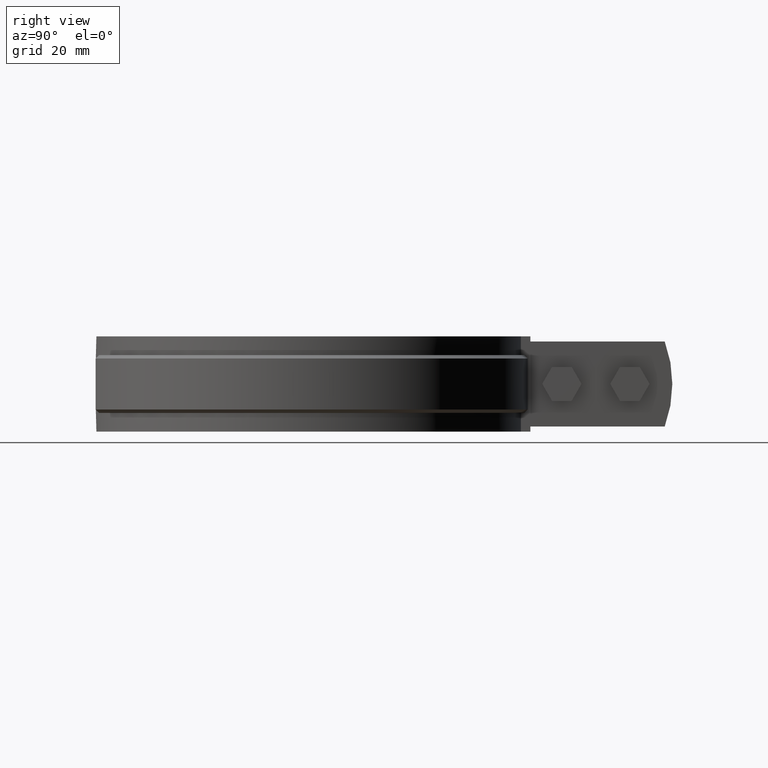
[diagram: clean part render]
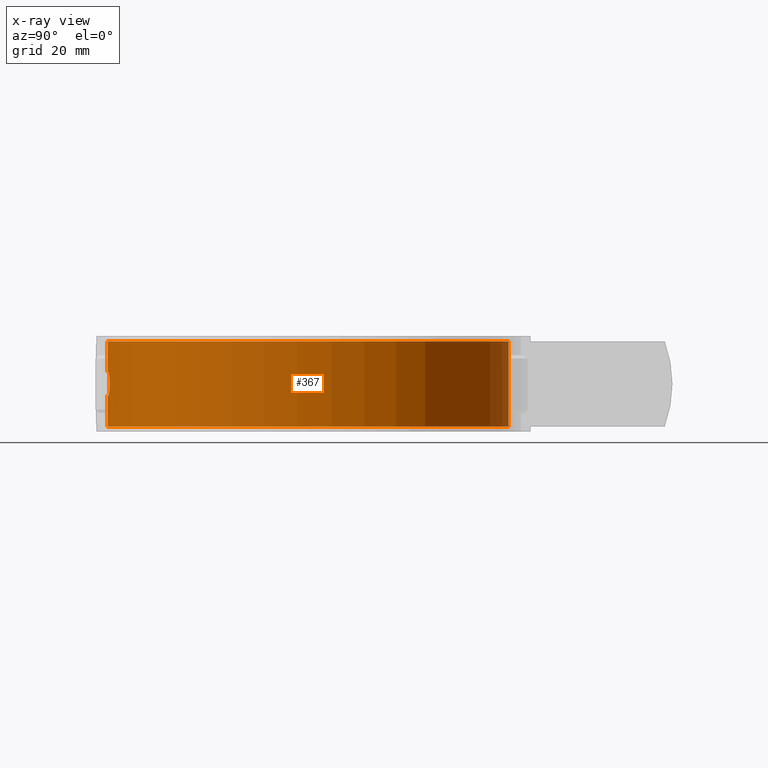
[diagram: x-ray — body ghosted, one internal face saturated and labeled with its STEP entity id]
A machine part, right view, then the same camera in x-ray: the body is ghosted and one INTERNAL B-rep face — a face not visible from any outside direction — is saturated and labeled: STEP entity #367.
In plain terms, the highlighted cylindrical surface (partial cylindrical patch) has radius 59.15 mm, axis along (0, 0, -1).
Its self-contained STEP definition (entity closure, byte-faithful):
#367 = ADVANCED_FACE( '', ( #622, #623 ), #624, .T. );
#622 = FACE_OUTER_BOUND( '', #1308, .T. );
#623 = FACE_BOUND( '', #1309, .T. );
#624 = CYLINDRICAL_SURFACE( '', #1310, 59.1500000000000 );
#1308 = EDGE_LOOP( '', ( #2746, #2747, #2748, #2749 ) );
#1309 = EDGE_LOOP( '', ( #2750, #2751, #2752, #2753, #2754, #2755, #2756, #2757, #2758, #2759, #2760, #2761, #2762, #2763, #2764, #2765 ) );
#1310 = AXIS2_PLACEMENT_3D( '', #2766, #2767, #2768 );
#2746 = ORIENTED_EDGE( '', *, *, #3980, .F. );
#2747 = ORIENTED_EDGE( '', *, *, #3992, .T. );
#2748 = ORIENTED_EDGE( '', *, *, #3993, .T. );
#2749 = ORIENTED_EDGE( '', *, *, #3986, .F. );
#2750 = ORIENTED_EDGE( '', *, *, #3994, .F. );
#2751 = ORIENTED_EDGE( '', *, *, #3995, .F. );
#2752 = ORIENTED_EDGE( '', *, *, #3996, .F. );
#2753 = ORIENTED_EDGE( '', *, *, #3997, .F. );
#2754 = ORIENTED_EDGE( '', *, *, #3998, .F. );
#2755 = ORIENTED_EDGE( '', *, *, #3999, .F. );
#2756 = ORIENTED_EDGE( '', *, *, #4000, .F. );
#2757 = ORIENTED_EDGE( '', *, *, #4001, .F. );
#2758 = ORIENTED_EDGE( '', *, *, #4002, .F. );
#2759 = ORIENTED_EDGE( '', *, *, #4003, .F. );
#2760 = ORIENTED_EDGE( '', *, *, #4004, .F. );
#2761 = ORIENTED_EDGE( '', *, *, #4005, .F. );
#2762 = ORIENTED_EDGE( '', *, *, #4006, .F. );
#2763 = ORIENTED_EDGE( '', *, *, #4007, .F. );
#2764 = ORIENTED_EDGE( '', *, *, #4008, .F. );
#2765 = ORIENTED_EDGE( '', *, *, #4009, .F. );
#2766 = CARTESIAN_POINT( '', ( 0.000000000000000, 0.000000000000000, -14.0000000000000 ) );
#2767 = DIRECTION( '', ( 0.000000000000000, 0.000000000000000, -1.00000000000000 ) );
#2768 = DIRECTION( '', ( -0.0845308537616220, -0.996420862267712, 0.000000000000000 ) );
#3980 = EDGE_CURVE( '', #4563, #4565, #4566, .T. );
#3986 = EDGE_CURVE( '', #4565, #4576, #4577, .T. );
#3992 = EDGE_CURVE( '', #4563, #4586, #4587, .T. );
#3993 = EDGE_CURVE( '', #4586, #4576, #4588, .T. );
#3994 = EDGE_CURVE( '', #4589, #4590, #4591, .T. );
#3995 = EDGE_CURVE( '', #4592, #4589, #4593, .F. );
#3996 = EDGE_CURVE( '', #4594, #4592, #4595, .T. );
#3997 = EDGE_CURVE( '', #4596, #4594, #4597, .F. );
#3998 = EDGE_CURVE( '', #4598, #4596, #4599, .T. );
#3999 = EDGE_CURVE( '', #4600, #4598, #4601, .F. );
#4000 = EDGE_CURVE( '', #4602, #4600, #4603, .T. );
#4001 = EDGE_CURVE( '', #4604, #4602, #4605, .F. );
#4002 = EDGE_CURVE( '', #4606, #4604, #4607, .T. );
#4003 = EDGE_CURVE( '', #4608, #4606, #4609, .F. );
#4004 = EDGE_CURVE( '', #4610, #4608, #4611, .T. );
#4005 = EDGE_CURVE( '', #4612, #4610, #4613, .F. );
#4006 = EDGE_CURVE( '', #4614, #4612, #4615, .T. );
#4007 = EDGE_CURVE( '', #4616, #4614, #4617, .F. );
#4008 = EDGE_CURVE( '', #4618, #4616, #4619, .T. );
#4009 = EDGE_CURVE( '', #4590, #4618, #4620, .F. );
#4563 = VERTEX_POINT( '', #6536 );
#4565 = VERTEX_POINT( '', #6538 );
#4566 = LINE( '', #6539, #6540 );
#4576 = VERTEX_POINT( '', #6568 );
#4577 = CIRCLE( '', #6569, 59.1500000000000 );
#4586 = VERTEX_POINT( '', #6581 );
#4587 = CIRCLE( '', #6582, 59.1500000000000 );
#4588 = LINE( '', #6583, #6584 );
#4589 = VERTEX_POINT( '', #6585 );
#4590 = VERTEX_POINT( '', #6586 );
#4591 = B_SPLINE_CURVE_WITH_KNOTS( '', 3, ( #6587, #6588, #6589, #6590, #6591, #6592, #6593, #6594, #6595, #6596, #6597, #6598, #6599, #6600, #6601, #6602, #6603, #6604, #6605, #6606, #6607, #6608, #6609, #6610, #6611, #6612, #6613, #6614, #6615, #6616, #6617, #6618, #6619, #6620 ), .UNSPECIFIED., .F., .F., ( 4, 2, 2, 2, 2, 2, 2, 2, 2, 2, 2, 2, 2, 2, 2, 2, 4 ), ( 9.69739903612216E-018, 0.000685840484445844, 0.00137168096889168, 0.00205752145333751, 0.00274336193778335, 0.00342920242222918, 0.00411504290667501, 0.00480088339112085, 0.00548672387556668, 0.00617256436001252, 0.00685840484445836, 0.00754424532890419, 0.00823008581335003, 0.00891592629779586, 0.00960176678224170, 0.0102876072666875, 0.0109734477511334 ), .UNSPECIFIED. );
#4592 = VERTEX_POINT( '', #6621 );
#4593 = CIRCLE( '', #6622, 59.1500000000000 );
#4594 = VERTEX_POINT( '', #6623 );
#4595 = B_SPLINE_CURVE_WITH_KNOTS( '', 3, ( #6624, #6625, #6626, #6627, #6628, #6629 ), .UNSPECIFIED., .F., .F., ( 4, 2, 4 ), ( 0.000000000000000, 0.000335831481587550, 0.000671662963175100 ), .UNSPECIFIED. );
#4596 = VERTEX_POINT( '', #6630 );
#4597 = ELLIPSE( '', #6631, 269.461386027856, 59.1500000000000 );
#4598 = VERTEX_POINT( '', #6632 );
#4599 = B_SPLINE_CURVE_WITH_KNOTS( '', 3, ( #6633, #6634, #6635, #6636, #6637, #6638, #6639, #6640, #6641, #6642 ), .UNSPECIFIED., .F., .F., ( 4, 2, 2, 2, 4 ), ( 0.000000000000000, 0.000671559393518246, 0.00134311878703649, 0.00201467818055474, 0.00268623757407299 ), .UNSPECIFIED. );
#4600 = VERTEX_POINT( '', #6643 );
#4601 = ELLIPSE( '', #6644, 269.461248569451, 59.1500000000000 );
#4602 = VERTEX_POINT( '', #6645 );
#4603 = B_SPLINE_CURVE_WITH_KNOTS( '', 3, ( #6646, #6647, #6648, #6649, #6650, #6651 ), .UNSPECIFIED., .F., .F., ( 4, 2, 4 ), ( 0.000000000000000, 0.000335830453991692, 0.000671660907983384 ), .UNSPECIFIED. );
#4604 = VERTEX_POINT( '', #6652 );
#4605 = CIRCLE( '', #6653, 59.1500000000000 );
#4606 = VERTEX_POINT( '', #6654 );
#4607 = B_SPLINE_CURVE_WITH_KNOTS( '', 3, ( #6655, #6656, #6657, #6658, #6659, #6660, #6661, #6662, #6663, #6664, #6665, #6666, #6667, #6668, #6669, #6670, #6671, #6672, #6673, #6674, #6675, #6676, #6677, #6678, #6679, #6680, #6681, #6682, #6683, #6684, #6685, #6686, #6687, #6688 ), .UNSPECIFIED., .F., .F., ( 4, 2, 2, 2, 2, 2, 2, 2, 2, 2, 2, 2, 2, 2, 2, 2, 4 ), ( 0.000000000000000, 0.000685840484445824, 0.00137168096889165, 0.00205752145333747, 0.00274336193778330, 0.00342920242222912, 0.00411504290667495, 0.00480088339112077, 0.00548672387556660, 0.00617256436001242, 0.00685840484445824, 0.00754424532890407, 0.00823008581334989, 0.00891592629779571, 0.00960176678224154, 0.0102876072666874, 0.0109734477511332 ), .UNSPECIFIED. );
#4608 = VERTEX_POINT( '', #6689 );
#4609 = CIRCLE( '', #6690, 59.1500000000000 );
#4610 = VERTEX_POINT( '', #6691 );
#4611 = B_SPLINE_CURVE_WITH_KNOTS( '', 3, ( #6692, #6693, #6694, #6695, #6696, #6697 ), .UNSPECIFIED., .F., .F., ( 4, 2, 4 ), ( 0.000000000000000, 0.000335831481587561, 0.000671662963175122 ), .UNSPECIFIED. );
#4612 = VERTEX_POINT( '', #6698 );
#4613 = ELLIPSE( '', #6699, 269.461386027932, 59.1500000000000 );
#4614 = VERTEX_POINT( '', #6700 );
#4615 = B_SPLINE_CURVE_WITH_KNOTS( '', 3, ( #6701, #6702, #6703, #6704, #6705, #6706, #6707, #6708, #6709, #6710 ), .UNSPECIFIED., .F., .F., ( 4, 2, 2, 2, 4 ), ( 0.000000000000000, 0.000671559393518249, 0.00134311878703650, 0.00201467818055475, 0.00268623757407300 ), .UNSPECIFIED. );
#4616 = VERTEX_POINT( '', #6711 );
#4617 = ELLIPSE( '', #6712, 269.461248569451, 59.1500000000000 );
#4618 = VERTEX_POINT( '', #6713 );
#4619 = B_SPLINE_CURVE_WITH_KNOTS( '', 3, ( #6714, #6715, #6716, #6717, #6718, #6719 ), .UNSPECIFIED., .F., .F., ( 4, 2, 4 ), ( 0.000000000000000, 0.000335830453991760, 0.000671660907983519 ), .UNSPECIFIED. );
#4620 = CIRCLE( '', #6720, 59.1500000000000 );
#6536 = CARTESIAN_POINT( '', ( -6.66210780370072, 58.7736235024851, -12.5000000000000 ) );
#6538 = CARTESIAN_POINT( '', ( -6.66210780370077, 58.7736235024851, 12.5000000000000 ) );
#6539 = CARTESIAN_POINT( '', ( -6.66210780370072, 58.7736235024851, -14.0000000000000 ) );
#6540 = VECTOR( '', #8194, 1000.00000000000 );
#6568 = CARTESIAN_POINT( '', ( 6.66210780370074, 58.7736235024851, 12.5000000000000 ) );
#6569 = AXIS2_PLACEMENT_3D( '', #8201, #8202, #8203 );
#6581 = CARTESIAN_POINT( '', ( 6.66210780370075, 58.7736235024851, -12.5000000000000 ) );
#6582 = AXIS2_PLACEMENT_3D( '', #8213, #8214, #8215 );
#6583 = CARTESIAN_POINT( '', ( 6.66210780370075, 58.7736235024851, -14.0000000000000 ) );
#6584 = VECTOR( '', #8216, 1000.00000000000 );
#6585 = CARTESIAN_POINT( '', ( 5.00000000000003, -58.9382940031352, -3.49999999999999 ) );
#6586 = CARTESIAN_POINT( '', ( 4.99999999999998, -58.9382940031352, 3.49999999999999 ) );
#6587 = CARTESIAN_POINT( '', ( 5.00000000000003, -58.9382940031352, -3.50000000000004 ) );
#6588 = CARTESIAN_POINT( '', ( 5.23108472953870, -58.9186900484019, -3.50000000000005 ) );
#6589 = CARTESIAN_POINT( '', ( 5.45819630642193, -58.8980553882998, -3.47733987116120 ) );
#6590 = CARTESIAN_POINT( '', ( 5.90483281279597, -58.8549554829124, -3.38867437439389 ) );
#6591 = CARTESIAN_POINT( '', ( 6.12663036380665, -58.8322377638681, -3.32161878510515 ) );
#6592 = CARTESIAN_POINT( '', ( 6.54985499710422, -58.7866243242112, -3.14648960242452 ) );
#6593 = CARTESIAN_POINT( '', ( 6.75056696535412, -58.7638403280690, -3.03934362483283 ) );
#6594 = CARTESIAN_POINT( '', ( 7.13046567819296, -58.7189538706935, -2.78625382261612 ) );
#6595 = CARTESIAN_POINT( '', ( 7.31051535566461, -58.6967236501176, -2.63885514677865 ) );
#6596 = CARTESIAN_POINT( '', ( 7.63349595950092, -58.6555942895473, -2.31662183485662 ) );
#6597 = CARTESIAN_POINT( '', ( 7.77849157376942, -58.6364586331887, -2.14076483153373 ) );
#6598 = CARTESIAN_POINT( '', ( 8.03472267801004, -58.6018979529871, -1.75879156155892 ) );
#6599 = CARTESIAN_POINT( '', ( 8.14403067117517, -58.5867314208868, -1.55472622131932 ) );
#6600 = CARTESIAN_POINT( '', ( 8.31932961901536, -58.5620960079670, -1.13320490860008 ) );
#6601 = CARTESIAN_POINT( '', ( 8.38677917544447, -58.5524254931442, -0.912778948258094 ) );
#6602 = CARTESIAN_POINT( '', ( 8.47740967954881, -58.5393724017687, -0.459413225960784 ) );
#6603 = CARTESIAN_POINT( '', ( 8.49981926058052, -58.5361048633271, -0.231619601638268 ) );
#6604 = CARTESIAN_POINT( '', ( 8.50017858271889, -58.5360526863133, 0.226124712646311 ) );
#6605 = CARTESIAN_POINT( '', ( 8.47740917893714, -58.5393721009278, 0.458600165287515 ) );
#6606 = CARTESIAN_POINT( '', ( 8.38772872888854, -58.5522891023792, 0.908835941642526 ) );
#6607 = CARTESIAN_POINT( '', ( 8.32137719446028, -58.5618054638645, 1.12746850434298 ) );
#6608 = CARTESIAN_POINT( '', ( 8.14559362537555, -58.5865145070966, 1.55176429916493 ) );
#6609 = CARTESIAN_POINT( '', ( 8.03571203668990, -58.6017595818350, 1.75684685243296 ) );
#6610 = CARTESIAN_POINT( '', ( 7.78193311994009, -58.6359992746825, 2.13609610008257 ) );
#6611 = CARTESIAN_POINT( '', ( 7.63715711120223, -58.6551228864835, 2.31272799926857 ) );
#6612 = CARTESIAN_POINT( '', ( 7.31049668957843, -58.6967311502210, 2.63911225134749 ) );
#6613 = CARTESIAN_POINT( '', ( 7.13372425938852, -58.7185558813006, 2.78370983069290 ) );
#6614 = CARTESIAN_POINT( '', ( 6.75516974813841, -58.7633092011354, 3.03664268425166 ) );
#6615 = CARTESIAN_POINT( '', ( 6.55091862757238, -58.7865057023843, 3.14596549535335 ) );
#6616 = CARTESIAN_POINT( '', ( 6.12775257217611, -58.8321207842767, 3.32123796546634 ) );
#6617 = CARTESIAN_POINT( '', ( 5.91000018107457, -58.8544389990636, 3.38733337480229 ) );
#6618 = CARTESIAN_POINT( '', ( 5.46223010274415, -58.8976836075875, 3.47684786174522 ) );
#6619 = CARTESIAN_POINT( '', ( 5.23108267661422, -58.9186902225607, 3.49999999999999 ) );
#6620 = CARTESIAN_POINT( '', ( 4.99999999999998, -58.9382940031352, 3.49999999999999 ) );
#6621 = CARTESIAN_POINT( '', ( 1.65000000000005, -59.1269819963779, -3.49999999999999 ) );
#6622 = AXIS2_PLACEMENT_3D( '', #8217, #8218, #8219 );
#6623 = CARTESIAN_POINT( '', ( 1.16219512100915, -59.1385813365581, -3.89024390662630 ) );
#6624 = CARTESIAN_POINT( '', ( 1.16219512100915, -59.1385813365581, -3.89024390662630 ) );
#6625 = CARTESIAN_POINT( '', ( 1.18712176025611, -59.1380914766755, -3.77945883886600 ) );
#6626 = CARTESIAN_POINT( '', ( 1.24902115300256, -59.1368777571282, -3.68045980007246 ) );
#6627 = CARTESIAN_POINT( '', ( 1.42634210307314, -59.1328666048516, -3.53862475115000 ) );
#6628 = CARTESIAN_POINT( '', ( 1.53648944153045, -59.1301496267076, -3.50000000000003 ) );
#6629 = CARTESIAN_POINT( '', ( 1.65000000000005, -59.1269819963779, -3.50000000000003 ) );
#6630 = CARTESIAN_POINT( '', ( 0.975609999999987, -59.1419536803435, -4.71951200000003 ) );
#6631 = AXIS2_PLACEMENT_3D( '', #8220, #8221, #8222 );
#6632 = CARTESIAN_POINT( '', ( -0.975609757981832, -59.1419536843359, -4.71951218674745 ) );
#6633 = CARTESIAN_POINT( '', ( -0.975609757981832, -59.1419536843359, -4.71951218674745 ) );
#6634 = CARTESIAN_POINT( '', ( -0.925764000266897, -59.1427759434023, -4.94104879757686 ) );
#6635 = CARTESIAN_POINT( '', ( -0.802006839384732, -59.1448284066473, -5.13901853152155 ) );
#6636 = CARTESIAN_POINT( '', ( -0.447387521711694, -59.1485738342658, -5.42271559104646 ) );
#6637 = CARTESIAN_POINT( '', ( -0.227075775181514, -59.1500000017834, -5.50000008621365 ) );
#6638 = CARTESIAN_POINT( '', ( 0.227076704276916, -59.1499999982166, -5.49999992065342 ) );
#6639 = CARTESIAN_POINT( '', ( 0.447393780783083, -59.1485737775223, -5.42271183234166 ) );
#6640 = CARTESIAN_POINT( '', ( 0.802006826849411, -59.1448283974158, -5.13901761295265 ) );
#6641 = CARTESIAN_POINT( '', ( 0.925764284607063, -59.1427759389158, -4.94104862074254 ) );
#6642 = CARTESIAN_POINT( '', ( 0.975609999999987, -59.1419536803435, -4.71951200000003 ) );
#6643 = CARTESIAN_POINT( '', ( -1.16219500000001, -59.1385813389362, -3.89024400000000 ) );
#6644 = AXIS2_PLACEMENT_3D( '', #8223, #8224, #8225 );
#6645 = CARTESIAN_POINT( '', ( -1.64999999999996, -59.1269819963779, -3.50000000000002 ) );
#6646 = CARTESIAN_POINT( '', ( -1.64999999999996, -59.1269819963779, -3.50000000000002 ) );
#6647 = CARTESIAN_POINT( '', ( -1.53648941365402, -59.1301496274855, -3.49999999951284 ) );
#6648 = CARTESIAN_POINT( '', ( -1.42634195765584, -59.1328666075620, -3.53862500442069 ) );
#6649 = CARTESIAN_POINT( '', ( -1.24902207049613, -59.1368777369528, -3.68045885717108 ) );
#6650 = CARTESIAN_POINT( '', ( -1.18712164587725, -59.1380914789743, -3.77945890499200 ) );
#6651 = CARTESIAN_POINT( '', ( -1.16219500000001, -59.1385813389362, -3.89024400000000 ) );
#6652 = CARTESIAN_POINT( '', ( -4.99999999999992, -58.9382940031352, -3.49999999999999 ) );
#6653 = AXIS2_PLACEMENT_3D( '', #8226, #8227, #8228 );
#6654 = CARTESIAN_POINT( '', ( -4.99999999999992, -58.9382940031352, 3.49999999999996 ) );
#6655 = CARTESIAN_POINT( '', ( -4.99999999999992, -58.9382940031352, 3.49999999999996 ) );
#6656 = CARTESIAN_POINT( '', ( -5.23108472953859, -58.9186900484019, 3.49999999999996 ) );
#6657 = CARTESIAN_POINT( '', ( -5.45819630642181, -58.8980553882998, 3.47733987116112 ) );
#6658 = CARTESIAN_POINT( '', ( -5.90483281279584, -58.8549554829124, 3.38867437439382 ) );
#6659 = CARTESIAN_POINT( '', ( -6.12663036380651, -58.8322377638681, 3.32161878510507 ) );
#6660 = CARTESIAN_POINT( '', ( -6.54985499710408, -58.7866243242112, 3.14648960242444 ) );
#6661 = CARTESIAN_POINT( '', ( -6.75056696535398, -58.7638403280690, 3.03934362483276 ) );
#6662 = CARTESIAN_POINT( '', ( -7.13046567819280, -58.7189538706935, 2.78625382261606 ) );
#6663 = CARTESIAN_POINT( '', ( -7.31051535566445, -58.6967236501177, 2.63885514677858 ) );
#6664 = CARTESIAN_POINT( '', ( -7.63349595950076, -58.6555942895473, 2.31662183485656 ) );
#6665 = CARTESIAN_POINT( '', ( -7.77849157376927, -58.6364586331887, 2.14076483153368 ) );
#6666 = CARTESIAN_POINT( '', ( -8.03472267800989, -58.6018979529872, 1.75879156155888 ) );
#6667 = CARTESIAN_POINT( '', ( -8.14403067117501, -58.5867314208869, 1.55472622131928 ) );
#6668 = CARTESIAN_POINT( '', ( -8.31932961901520, -58.5620960079670, 1.13320490860005 ) );
#6669 = CARTESIAN_POINT( '', ( -8.38677917544431, -58.5524254931442, 0.912778948258069 ) );
#6670 = CARTESIAN_POINT( '', ( -8.47740967954866, -58.5393724017687, 0.459413225960766 ) );
#6671 = CARTESIAN_POINT( '', ( -8.49981926058036, -58.5361048633271, 0.231619601638253 ) );
#6672 = CARTESIAN_POINT( '', ( -8.50017858271874, -58.5360526863133, -0.226124712646318 ) );
#6673 = CARTESIAN_POINT( '', ( -8.47740917893700, -58.5393721009278, -0.458600165287517 ) );
#6674 = CARTESIAN_POINT( '', ( -8.38772872888840, -58.5522891023792, -0.908835941642524 ) );
#6675 = CARTESIAN_POINT( '', ( -8.32137719446014, -58.5618054638645, -1.12746850434297 ) );
#6676 = CARTESIAN_POINT( '', ( -8.14559362537542, -58.5865145070966, -1.55176429916492 ) );
#6677 = CARTESIAN_POINT( '', ( -8.03571203668978, -58.6017595818350, -1.75684685243295 ) );
#6678 = CARTESIAN_POINT( '', ( -7.78193311993997, -58.6359992746825, -2.13609610008255 ) );
#6679 = CARTESIAN_POINT( '', ( -7.63715711120212, -58.6551228864835, -2.31272799926855 ) );
#6680 = CARTESIAN_POINT( '', ( -7.31049668957832, -58.6967311502211, -2.63911225134747 ) );
#6681 = CARTESIAN_POINT( '', ( -7.13372425938842, -58.7185558813006, -2.78370983069288 ) );
#6682 = CARTESIAN_POINT( '', ( -6.75516974813832, -58.7633092011354, -3.03664268425164 ) );
#6683 = CARTESIAN_POINT( '', ( -6.55091862757229, -58.7865057023843, -3.14596549535333 ) );
#6684 = CARTESIAN_POINT( '', ( -6.12775257217603, -58.8321207842767, -3.32123796546633 ) );
#6685 = CARTESIAN_POINT( '', ( -5.91000018107450, -58.8544389990637, -3.38733337480228 ) );
#6686 = CARTESIAN_POINT( '', ( -5.46223010274409, -58.8976836075875, -3.47684786174521 ) );
#6687 = CARTESIAN_POINT( '', ( -5.23108267661416, -58.9186902225607, -3.49999999999999 ) );
#6688 = CARTESIAN_POINT( '', ( -4.99999999999992, -58.9382940031352, -3.49999999999999 ) );
#6689 = CARTESIAN_POINT( '', ( -1.65000000000001, -59.1269819963779, 3.49999999999999 ) );
#6690 = AXIS2_PLACEMENT_3D( '', #8229, #8230, #8231 );
#6691 = CARTESIAN_POINT( '', ( -1.16219512100910, -59.1385813365581, 3.89024390662628 ) );
#6692 = CARTESIAN_POINT( '', ( -1.16219512100910, -59.1385813365581, 3.89024390662628 ) );
#6693 = CARTESIAN_POINT( '', ( -1.18712176025606, -59.1380914766755, 3.77945883886597 ) );
#6694 = CARTESIAN_POINT( '', ( -1.24902115300251, -59.1368777571282, 3.68045980007243 ) );
#6695 = CARTESIAN_POINT( '', ( -1.42634210307309, -59.1328666048516, 3.53862475114997 ) );
#6696 = CARTESIAN_POINT( '', ( -1.53648944153041, -59.1301496267076, 3.49999999999999 ) );
#6697 = CARTESIAN_POINT( '', ( -1.65000000000001, -59.1269819963779, 3.49999999999999 ) );
#6698 = CARTESIAN_POINT( '', ( -0.975609999999988, -59.1419536803435, 4.71951200000001 ) );
#6699 = AXIS2_PLACEMENT_3D( '', #8232, #8233, #8234 );
#6700 = CARTESIAN_POINT( '', ( 0.975609757981834, -59.1419536843359, 4.71951218674745 ) );
#6701 = CARTESIAN_POINT( '', ( 0.975609757981834, -59.1419536843359, 4.71951218674745 ) );
#6702 = CARTESIAN_POINT( '', ( 0.925764000266897, -59.1427759434023, 4.94104879757687 ) );
#6703 = CARTESIAN_POINT( '', ( 0.802006839384731, -59.1448284066473, 5.13901853152156 ) );
#6704 = CARTESIAN_POINT( '', ( 0.447387521711689, -59.1485738342658, 5.42271559104646 ) );
#6705 = CARTESIAN_POINT( '', ( 0.227075775181507, -59.1500000017834, 5.50000008621365 ) );
#6706 = CARTESIAN_POINT( '', ( -0.227076704276925, -59.1499999982166, 5.49999992065342 ) );
#6707 = CARTESIAN_POINT( '', ( -0.447393780783092, -59.1485737775223, 5.42271183234166 ) );
#6708 = CARTESIAN_POINT( '', ( -0.802006826849418, -59.1448283974158, 5.13901761295264 ) );
#6709 = CARTESIAN_POINT( '', ( -0.925764284607068, -59.1427759389158, 4.94104862074253 ) );
#6710 = CARTESIAN_POINT( '', ( -0.975609999999988, -59.1419536803435, 4.71951200000001 ) );
#6711 = CARTESIAN_POINT( '', ( 1.16219500000000, -59.1385813389362, 3.89024400000001 ) );
#6712 = AXIS2_PLACEMENT_3D( '', #8235, #8236, #8237 );
#6713 = CARTESIAN_POINT( '', ( 1.65000000000007, -59.1269819963779, 3.49999999999997 ) );
#6714 = CARTESIAN_POINT( '', ( 1.65000000000007, -59.1269819963779, 3.49999999999997 ) );
#6715 = CARTESIAN_POINT( '', ( 1.53648941365411, -59.1301496274855, 3.49999999951279 ) );
#6716 = CARTESIAN_POINT( '', ( 1.42634195765590, -59.1328666075620, 3.53862500442063 ) );
#6717 = CARTESIAN_POINT( '', ( 1.24902207049616, -59.1368777369528, 3.68045885717104 ) );
#6718 = CARTESIAN_POINT( '', ( 1.18712164587726, -59.1380914789743, 3.77945890499198 ) );
#6719 = CARTESIAN_POINT( '', ( 1.16219500000000, -59.1385813389362, 3.89024400000001 ) );
#6720 = AXIS2_PLACEMENT_3D( '', #8238, #8239, #8240 );
#8194 = DIRECTION( '', ( 0.000000000000000, 0.000000000000000, 1.00000000000000 ) );
#8201 = CARTESIAN_POINT( '', ( 0.000000000000000, 6.93889390390723E-015, 12.5000000000000 ) );
#8202 = DIRECTION( '', ( 0.000000000000000, 0.000000000000000, 1.00000000000000 ) );
#8203 = DIRECTION( '', ( 1.00000000000000, 1.38777878078145E-017, 0.000000000000000 ) );
#8213 = CARTESIAN_POINT( '', ( 0.000000000000000, 6.93889390390723E-015, -12.5000000000000 ) );
#8214 = DIRECTION( '', ( 0.000000000000000, 0.000000000000000, 1.00000000000000 ) );
#8215 = DIRECTION( '', ( 1.00000000000000, 1.38777878078145E-017, 0.000000000000000 ) );
#8216 = DIRECTION( '', ( 0.000000000000000, 0.000000000000000, 1.00000000000000 ) );
#8217 = CARTESIAN_POINT( '', ( 0.000000000000000, 0.000000000000000, -3.49999999999999 ) );
#8218 = DIRECTION( '', ( -6.12303176911189E-017, 0.000000000000000, -1.00000000000000 ) );
#8219 = DIRECTION( '', ( -1.00000000000000, 0.000000000000000, 6.12303176911189E-017 ) );
#8220 = CARTESIAN_POINT( '', ( 0.000000000000000, 0.000000000000000, -9.05556109223489 ) );
#8221 = DIRECTION( '', ( 0.975609806487704, 0.000000000000000, -0.219511971165639 ) );
#8222 = DIRECTION( '', ( 0.219511971165639, 0.000000000000000, 0.975609806487704 ) );
#8223 = CARTESIAN_POINT( '', ( 0.000000000000000, 0.000000000000000, -9.05555787944973 ) );
#8224 = DIRECTION( '', ( -0.975609781292646, 0.000000000000000, -0.219512083143765 ) );
#8225 = DIRECTION( '', ( -0.219512083143765, 0.000000000000000, 0.975609781292646 ) );
#8226 = CARTESIAN_POINT( '', ( 0.000000000000000, 0.000000000000000, -3.49999999999999 ) );
#8227 = DIRECTION( '', ( -6.12303176911189E-017, 0.000000000000000, -1.00000000000000 ) );
#8228 = DIRECTION( '', ( -1.00000000000000, 0.000000000000000, 6.12303176911189E-017 ) );
#8229 = CARTESIAN_POINT( '', ( 0.000000000000000, 0.000000000000000, 3.49999999999999 ) );
#8230 = DIRECTION( '', ( 6.12303176911189E-017, 0.000000000000000, 1.00000000000000 ) );
#8231 = DIRECTION( '', ( 1.00000000000000, 0.000000000000000, -6.12303176911189E-017 ) );
#8232 = CARTESIAN_POINT( '', ( 0.000000000000000, 0.000000000000000, 9.05556109223615 ) );
#8233 = DIRECTION( '', ( -0.975609806487718, 0.000000000000000, 0.219511971165577 ) );
#8234 = DIRECTION( '', ( 0.219511971165577, 0.000000000000000, 0.975609806487718 ) );
#8235 = CARTESIAN_POINT( '', ( 0.000000000000000, 0.000000000000000, 9.05555787944971 ) );
#8236 = DIRECTION( '', ( 0.975609781292646, 0.000000000000000, 0.219512083143765 ) );
#8237 = DIRECTION( '', ( -0.219512083143765, 0.000000000000000, 0.975609781292646 ) );
#8238 = CARTESIAN_POINT( '', ( 0.000000000000000, 0.000000000000000, 3.49999999999999 ) );
#8239 = DIRECTION( '', ( 6.12303176911189E-017, 0.000000000000000, 1.00000000000000 ) );
#8240 = DIRECTION( '', ( 1.00000000000000, 0.000000000000000, -6.12303176911189E-017 ) );